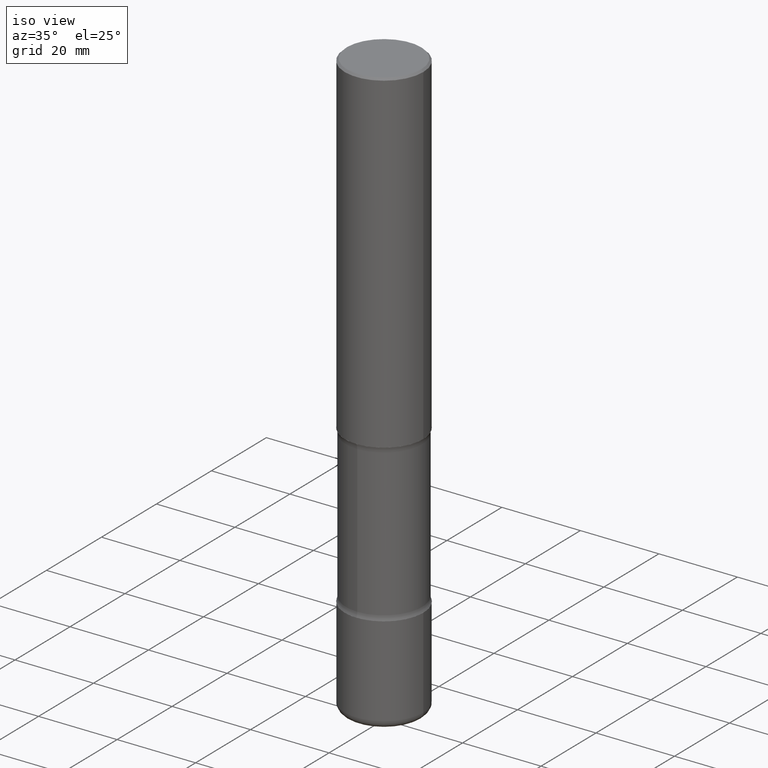
[diagram: clean part render]
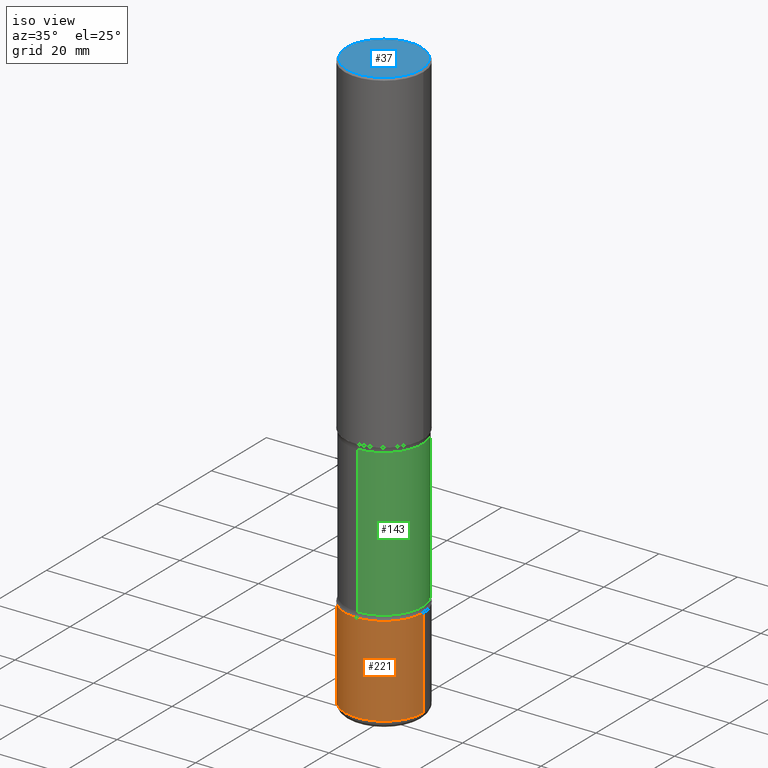
[diagram: same view with three faces highlighted in distinct colors, each labeled with its STEP entity id]
A machine part, iso view with three faces highlighted in distinct colors.
Their STEP definitions:

[orange] entity #221 — the highlighted cylindrical surface (partial cylindrical patch) has radius 10 mm, axis along (-0, 0, 1).
#11 = CYLINDRICAL_SURFACE ( 'NONE', #108, 0.3937000000000002164 ) ;
#15 = VECTOR ( 'NONE', #169, 39.37007874015748143 ) ;
#19 = AXIS2_PLACEMENT_3D ( 'NONE', #202, #423, #382 ) ;
#53 = DIRECTION ( 'NONE',  ( -2.445468806185136597E-29, 3.491481338843145583E-15, 1.000000000000000000 ) ) ;
#79 = ORIENTED_EDGE ( 'NONE', *, *, #265, .F. ) ;
#83 = CIRCLE ( 'NONE', #19, 0.3937000000000001609 ) ;
#108 = AXIS2_PLACEMENT_3D ( 'NONE', #135, #53, #247 ) ;
#113 = CARTESIAN_POINT ( 'NONE',  ( 0.3937000000000001609, -1.993147037091996521E-14, -4.921199999999998020 ) ) ;
#114 = CARTESIAN_POINT ( 'NONE',  ( -0.3937000000000003830, -1.754675671448371516E-14, -5.826799999999997759 ) ) ;
#135 = CARTESIAN_POINT ( 'NONE',  ( 0.000000000000000000, 0.000000000000000000, 0.000000000000000000 ) ) ;
#163 = CARTESIAN_POINT ( 'NONE',  ( -0.3937000000000001609, -1.596581396425554158E-14, -4.921199999999998020 ) ) ;
#169 = DIRECTION ( 'NONE',  ( -2.445468806185136877E-29, 3.491481338843145188E-15, 1.000000000000000000 ) ) ;
#172 = CARTESIAN_POINT ( 'NONE',  ( -0.3937000000000002164, 2.797406750687515970E-15, -1.936584745033357576E-29 ) ) ;
#199 = VERTEX_POINT ( 'NONE', #163 ) ;
#202 = CARTESIAN_POINT ( 'NONE',  ( 1.203464108899828931E-28, -1.718227796471488199E-14, -4.921199999999998020 ) ) ;
#207 = EDGE_LOOP ( 'NONE', ( #445, #485, #345, #79 ) ) ;
#208 = FACE_OUTER_BOUND ( 'NONE', #207, .T. ) ;
#221 = ADVANCED_FACE ( 'NONE', ( #208 ), #11, .T. ) ;
#228 = CIRCLE ( 'NONE', #292, 0.3937000000000002720 ) ;
#247 = DIRECTION ( 'NONE',  ( 1.000000000000000000, -6.982962677686266711E-15, 4.876176775795935793E-29 ) ) ;
#257 = LINE ( 'NONE', #172, #15 ) ;
#265 = EDGE_CURVE ( 'NONE', #199, #385, #83, .T. ) ;
#276 = VERTEX_POINT ( 'NONE', #387 ) ;
#292 = AXIS2_PLACEMENT_3D ( 'NONE', #377, #461, #540 ) ;
#344 = DIRECTION ( 'NONE',  ( -2.445468806185136877E-29, 3.491481338843145188E-15, 1.000000000000000000 ) ) ;
#345 = ORIENTED_EDGE ( 'NONE', *, *, #349, .T. ) ;
#349 = EDGE_CURVE ( 'NONE', #276, #385, #422, .T. ) ;
#377 = CARTESIAN_POINT ( 'NONE',  ( 1.424925763987954893E-28, -2.034416346517123547E-14, -5.826799999999997759 ) ) ;
#382 = DIRECTION ( 'NONE',  ( 1.000000000000000000, -6.982962677686265922E-15, 0.000000000000000000 ) ) ;
#385 = VERTEX_POINT ( 'NONE', #113 ) ;
#387 = CARTESIAN_POINT ( 'NONE',  ( 0.3937000000000003830, -2.309335587137632500E-14, -5.826799999999997759 ) ) ;
#392 = EDGE_CURVE ( 'NONE', #429, #276, #228, .T. ) ;
#422 = LINE ( 'NONE', #471, #463 ) ;
#423 = DIRECTION ( 'NONE',  ( -2.445468806185136597E-29, 3.491481338843145583E-15, 1.000000000000000000 ) ) ;
#429 = VERTEX_POINT ( 'NONE', #114 ) ;
#445 = ORIENTED_EDGE ( 'NONE', *, *, #507, .F. ) ;
#461 = DIRECTION ( 'NONE',  ( -2.445468806185136597E-29, 3.491481338843145583E-15, 1.000000000000000000 ) ) ;
#463 = VECTOR ( 'NONE', #344, 39.37007874015748143 ) ;
#471 = CARTESIAN_POINT ( 'NONE',  ( 0.3937000000000002164, -2.749192406205084794E-15, 1.919750796630861012E-29 ) ) ;
#485 = ORIENTED_EDGE ( 'NONE', *, *, #392, .T. ) ;
#507 = EDGE_CURVE ( 'NONE', #429, #199, #257, .T. ) ;
#540 = DIRECTION ( 'NONE',  ( 1.000000000000000000, -6.982962677686263555E-15, 0.000000000000000000 ) ) ;

[blue] entity #37 — the highlighted planar face has unit normal (0, -0, -1).
#37 = ADVANCED_FACE ( 'NONE', ( #555 ), #215, .F. ) ;
#47 = AXIS2_PLACEMENT_3D ( 'NONE', #455, #286, #54 ) ;
#54 = DIRECTION ( 'NONE',  ( 1.000000000000000000, -6.982962677686266711E-15, 4.876212485538977921E-29 ) ) ;
#58 = CARTESIAN_POINT ( 'NONE',  ( -0.3736999999999998101, 2.644447966039787875E-15, 8.537024980182450727E-18 ) ) ;
#90 = VERTEX_POINT ( 'NONE', #58 ) ;
#98 = EDGE_CURVE ( 'NONE', #152, #90, #253, .T. ) ;
#107 = CARTESIAN_POINT ( 'NONE',  ( 0.3736999999999998101, -2.667287895133366781E-15, 8.537024980219274507E-18 ) ) ;
#124 = ORIENTED_EDGE ( 'NONE', *, *, #185, .T. ) ;
#136 = DIRECTION ( 'NONE',  ( -1.000000000000000000, 6.982962677686265922E-15, -4.876176775795935793E-29 ) ) ;
#152 = VERTEX_POINT ( 'NONE', #107 ) ;
#170 = CARTESIAN_POINT ( 'NONE',  ( 2.609533152651356226E-15, 0.3736999999999998101, -1.300498063835582617E-15 ) ) ;
#185 = EDGE_CURVE ( 'NONE', #90, #152, #324, .T. ) ;
#215 = PLANE ( 'NONE',  #522 ) ;
#253 = CIRCLE ( 'NONE', #47, 0.3736999999999998101 ) ;
#277 = AXIS2_PLACEMENT_3D ( 'NONE', #283, #542, #340 ) ;
#283 = CARTESIAN_POINT ( 'NONE',  ( -2.087702828670439639E-46, 2.980686340760894400E-32, 8.537024980200822558E-18 ) ) ;
#286 = DIRECTION ( 'NONE',  ( -2.445468806185136597E-29, 3.491481338843145583E-15, 1.000000000000000000 ) ) ;
#304 = ORIENTED_EDGE ( 'NONE', *, *, #98, .T. ) ;
#324 = CIRCLE ( 'NONE', #277, 0.3736999999999998101 ) ;
#340 = DIRECTION ( 'NONE',  ( 1.000000000000000000, -6.982962677686266711E-15, 4.876212485538977921E-29 ) ) ;
#358 = EDGE_LOOP ( 'NONE', ( #124, #304 ) ) ;
#361 = DIRECTION ( 'NONE',  ( 2.438088387897960049E-29, -3.491481338843145188E-15, -1.000000000000000000 ) ) ;
#455 = CARTESIAN_POINT ( 'NONE',  ( -2.087702828670439639E-46, 2.980686340760894400E-32, 8.537024980200822558E-18 ) ) ;
#522 = AXIS2_PLACEMENT_3D ( 'NONE', #170, #361, #136 ) ;
#542 = DIRECTION ( 'NONE',  ( -2.445468806185136597E-29, 3.491481338843145583E-15, 1.000000000000000000 ) ) ;
#555 = FACE_OUTER_BOUND ( 'NONE', #358, .T. ) ;

[green] entity #143 — the highlighted cylindrical surface (partial cylindrical patch) has radius 9.732 mm, axis along (0, -0, -1).
#7 = ORIENTED_EDGE ( 'NONE', *, *, #240, .F. ) ;
#31 = EDGE_LOOP ( 'NONE', ( #35, #516, #362, #7 ) ) ;
#35 = ORIENTED_EDGE ( 'NONE', *, *, #165, .T. ) ;
#38 = CARTESIAN_POINT ( 'NONE',  ( 8.167493925109434306E-29, -1.205834278836177543E-14, -3.396661292263528420 ) ) ;
#94 = VECTOR ( 'NONE', #500, 39.37007874015748143 ) ;
#104 = DIRECTION ( 'NONE',  ( 2.536601494120493495E-29, -3.360974142769239712E-15, -1.000000000000000000 ) ) ;
#106 = CARTESIAN_POINT ( 'NONE',  ( -2.628599807846016670E-15, -0.3831500000000204742, -5.905499999999997307 ) ) ;
#115 = DIRECTION ( 'NONE',  ( 6.982962677686265922E-15, 1.000000000000000000, -2.851987987643756480E-15 ) ) ;
#123 = CARTESIAN_POINT ( 'NONE',  ( -2.664788934784287418E-15, -0.3831500000000169770, -4.870938707736466533 ) ) ;
#143 = ADVANCED_FACE ( 'NONE', ( #195 ), #206, .T. ) ;
#147 = CARTESIAN_POINT ( 'NONE',  ( 2.675522149955637761E-15, 0.3831499999999795070, -5.905499999999999972 ) ) ;
#154 = LINE ( 'NONE', #147, #368 ) ;
#162 = CARTESIAN_POINT ( 'NONE',  ( 1.453141793966108941E-28, -2.049048481344264493E-14, -5.905499999999998195 ) ) ;
#165 = EDGE_CURVE ( 'NONE', #174, #447, #510, .T. ) ;
#171 = VERTEX_POINT ( 'NONE', #464 ) ;
#174 = VERTEX_POINT ( 'NONE', #201 ) ;
#176 = AXIS2_PLACEMENT_3D ( 'NONE', #162, #544, #115 ) ;
#192 = AXIS2_PLACEMENT_3D ( 'NONE', #38, #378, #250 ) ;
#195 = FACE_OUTER_BOUND ( 'NONE', #31, .T. ) ;
#201 = CARTESIAN_POINT ( 'NONE',  ( 2.675522149955574652E-15, 0.3831499999999879447, -3.396661292263529308 ) ) ;
#206 = CYLINDRICAL_SURFACE ( 'NONE', #176, 0.3831499999999999906 ) ;
#240 = EDGE_CURVE ( 'NONE', #174, #171, #154, .T. ) ;
#245 = CARTESIAN_POINT ( 'NONE',  ( 1.190714821994619211E-28, -1.701335106103498951E-14, -4.870938707736467421 ) ) ;
#250 = DIRECTION ( 'NONE',  ( 6.982962677686266711E-15, 1.000000000000000000, -2.851987987643756086E-15 ) ) ;
#285 = DIRECTION ( 'NONE',  ( 2.536601494120493495E-29, -3.360974142769239318E-15, -1.000000000000000000 ) ) ;
#289 = EDGE_CURVE ( 'NONE', #447, #509, #336, .T. ) ;
#296 = DIRECTION ( 'NONE',  ( 6.982962677686265922E-15, 1.000000000000000000, -2.851987987643756480E-15 ) ) ;
#299 = CARTESIAN_POINT ( 'NONE',  ( -2.664788934784326861E-15, -0.3831500000000121475, -3.396661292263527088 ) ) ;
#326 = CIRCLE ( 'NONE', #546, 0.3831499999999999906 ) ;
#329 = EDGE_CURVE ( 'NONE', #171, #509, #326, .T. ) ;
#336 = LINE ( 'NONE', #106, #94 ) ;
#362 = ORIENTED_EDGE ( 'NONE', *, *, #329, .F. ) ;
#368 = VECTOR ( 'NONE', #285, 39.37007874015748143 ) ;
#378 = DIRECTION ( 'NONE',  ( 2.536601494120493495E-29, -3.360974142769239712E-15, -1.000000000000000000 ) ) ;
#447 = VERTEX_POINT ( 'NONE', #299 ) ;
#464 = CARTESIAN_POINT ( 'NONE',  ( 2.675522149955611729E-15, 0.3831499999999830042, -4.870938707736469198 ) ) ;
#500 = DIRECTION ( 'NONE',  ( 2.536601494120493495E-29, -3.360974142769239318E-15, -1.000000000000000000 ) ) ;
#509 = VERTEX_POINT ( 'NONE', #123 ) ;
#510 = CIRCLE ( 'NONE', #192, 0.3831500000000000461 ) ;
#516 = ORIENTED_EDGE ( 'NONE', *, *, #289, .T. ) ;
#544 = DIRECTION ( 'NONE',  ( 2.536601494120493495E-29, -3.360974142769239712E-15, -1.000000000000000000 ) ) ;
#546 = AXIS2_PLACEMENT_3D ( 'NONE', #245, #104, #296 ) ;